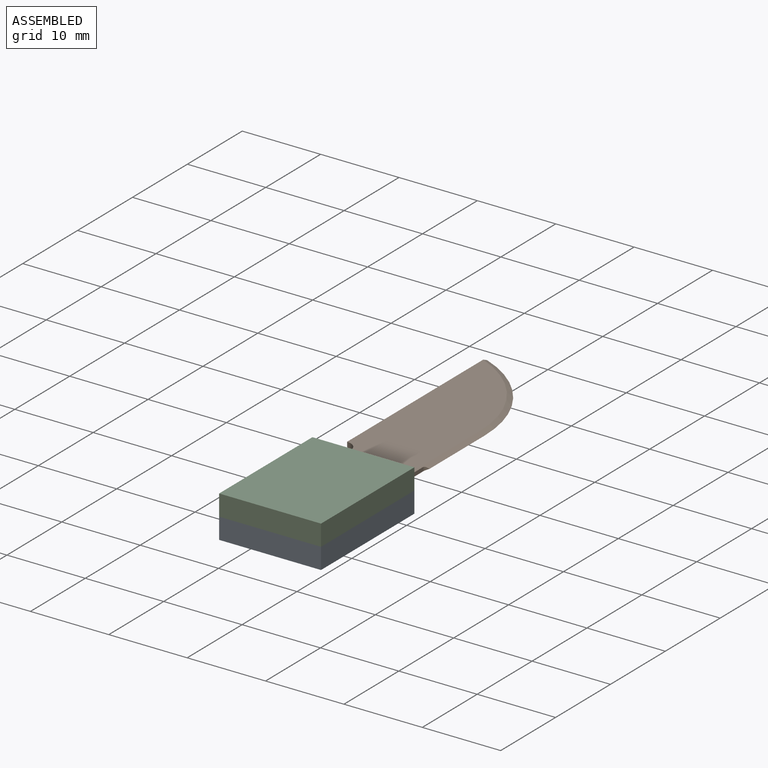
[diagram: assembled view]
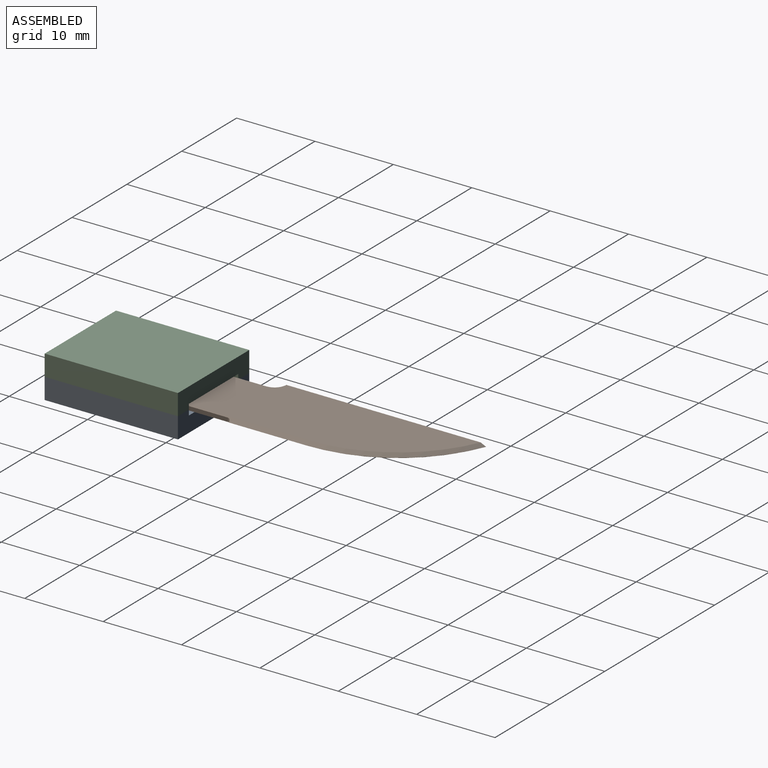
[diagram: assembled view, second angle]
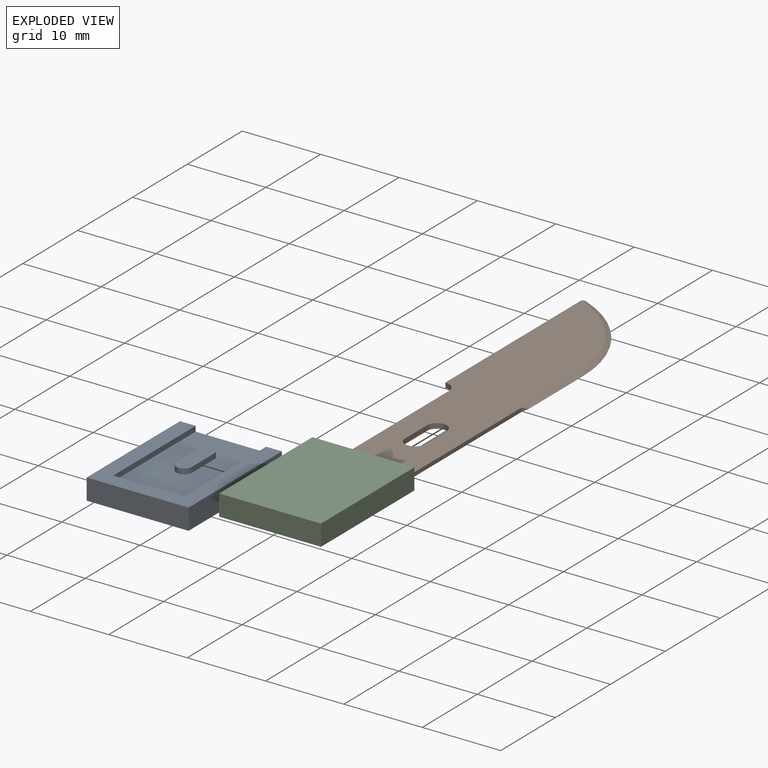
[diagram: exploded view]
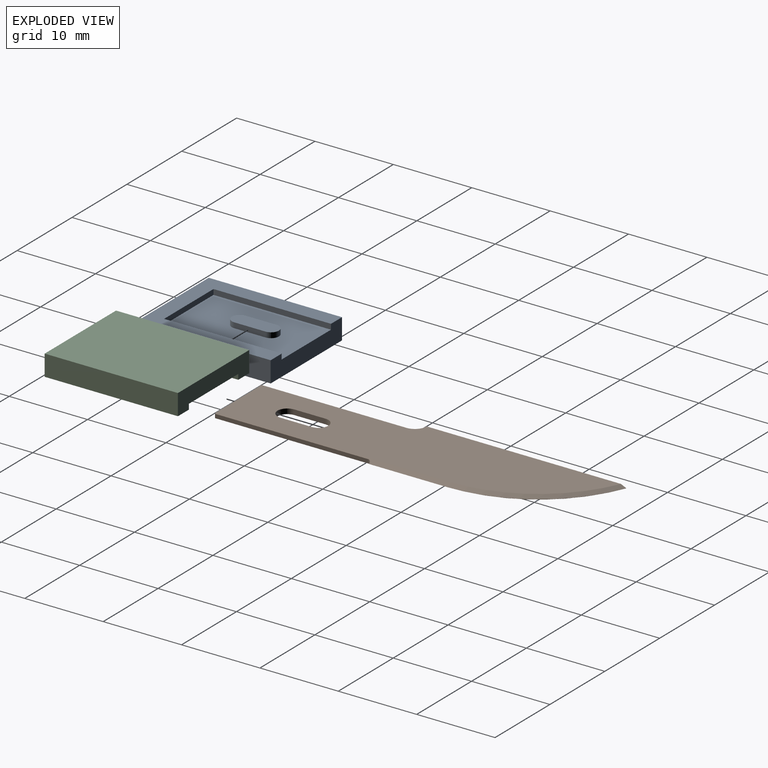
[diagram: exploded view, second angle]
ASSEMBLY  parts=3 mates=2
PART A: 15 faces, bbox 13x17x2.7 mm
  f0: plane 13x2.68mm, normal (0,1,0), area 28.7mm2, adj f1,f2,f4,f5,f6,f8,f9
  f1: plane 15x9mm, normal (0,0,1), area 123.9mm2, adj f0,f3,f4,f5,f11,f12,f13,f14
  f2: plane 17x13mm, normal (0,0,-1), area 221mm2, adj f0,f6,f7,f8
  f3: plane 9x0.68mm, normal (0,1,0), area 6.1mm2, adj f1,f4,f5,f9
  f4: plane 15x0.68mm, normal (-1,0,0), area 10.1mm2, adj f0,f1,f3,f9
  f5: plane 15x0.68mm, normal (1,0,0), area 10.1mm2, adj f0,f1,f3,f9
  f6: plane 17x2.68mm, normal (-1,0,0), area 45.5mm2, adj f0,f2,f7,f9
  f7: plane 13x2.68mm, normal (0,-1,0), area 34.8mm2, adj f2,f6,f8,f9
  f8: plane 17x2.68mm, normal (1,0,0), area 45.5mm2, adj f0,f2,f7,f9
  f9: plane 17x13mm, normal (0,0,1), area 86mm2, adj f0,f3,f4,f5,f6,f7,f8
  f10: plane 6x2mm, normal (0,0,1), area 11.1mm2, adj f11,f12,f13,f14
  f11: cylinder r=1mm len=2mm, axis (0,0,-1), area 2.1mm2, adj f1,f10,f12,f14
  f12: plane 4x0.68mm, normal (-1,0,0), area 2.7mm2, adj f1,f10,f11,f13
  f13: cylinder r=1mm len=2mm, axis (0,0,-1), area 2.1mm2, adj f1,f10,f12,f14
  f14: plane 4x0.68mm, normal (1,0,0), area 2.7mm2, adj f1,f10,f11,f13
PART B: 16 faces, bbox 10.7x45.5x0.7 mm
  f0: plane 4x0.65mm, normal (1,0,0), area 2.6mm2, adj f1,f9,f10,f11
  f1: cylinder r=1.25mm len=2.5mm, axis (0,0,-1), area 2.6mm2, adj f0,f2,f10,f11
  f2: plane 4x0.65mm, normal (-1,0,0), area 2.6mm2, adj f1,f9,f10,f11
  f3: cylinder r=1.5mm len=1.5mm, axis (0,0,-1), area 1.5mm2, adj f4,f8,f10,f11
  f4: plane 18.5x0.65mm, normal (-1,0,0), area 12mm2, adj f3,f5,f10,f11
  f5: plane 8.5x0.65mm, normal (0,-1,0), area 5.5mm2, adj f4,f6,f10,f11,f12,f14
  f6: plane 19.5x0.5mm, normal (1,0,0), area 9.8mm2, adj f5,f7,f12,f14
  f7: cylinder r=0.5mm len=0.5mm, axis (0,0,-1), area 0.3mm2, adj f6,f12,f14
  f8: plane 25.51x0.66mm, normal (-1,0,0), area 16.3mm2, adj f3,f10,f11,f13,f15
  f9: cylinder r=1.25mm len=2.5mm, axis (0,0,-1), area 2.6mm2, adj f0,f2,f10,f11
  f10: plane 44.8x9.85mm, normal (0,0,1), area 356.4mm2, adj f0,f1,f2,f3,f4,f5,f8,f9
  f11: plane 44.8x9.85mm, normal (0,0,-1), area 356.4mm2, adj f0,f1,f2,f3,f4,f5,f8,f9
  f12: plane 30x0.65mm, normal (0.45,0,0.89), area 10.7mm2, adj f5,f6,f7,f10,f13,f14
  f13: cone r=16.04mm half-angle=63.4deg, axis (0,0,-1), area 14.1mm2, adj f8,f10,f12,f15
  f14: plane 30x0.65mm, normal (0.45,0,-0.89), area 10.7mm2, adj f5,f6,f7,f11,f12,f15
  f15: cone r=16.69mm half-angle=63.4deg, axis (0,0,1), area 14.1mm2, adj f8,f11,f13,f14
PART C: same geometry as A
PLACE A rot(axis=(1,0,0),0deg) t=(-8.25,-27.54,-22.85)mm
PLACE B t=(13.72,-17.86,-20.48)mm
PLACE C rot(axis=(0,-1,0),180deg) t=(-64.88,-27.54,-17.5)mm
MATE fastened A.f10 <-> C.f10  axis (0,0,1) through (-36.57,14.99,-20.17)mm
MATE slider B.f10 <-> A.f10  axis (0,0,1) through (-36.57,14.99,-19.83)mm
